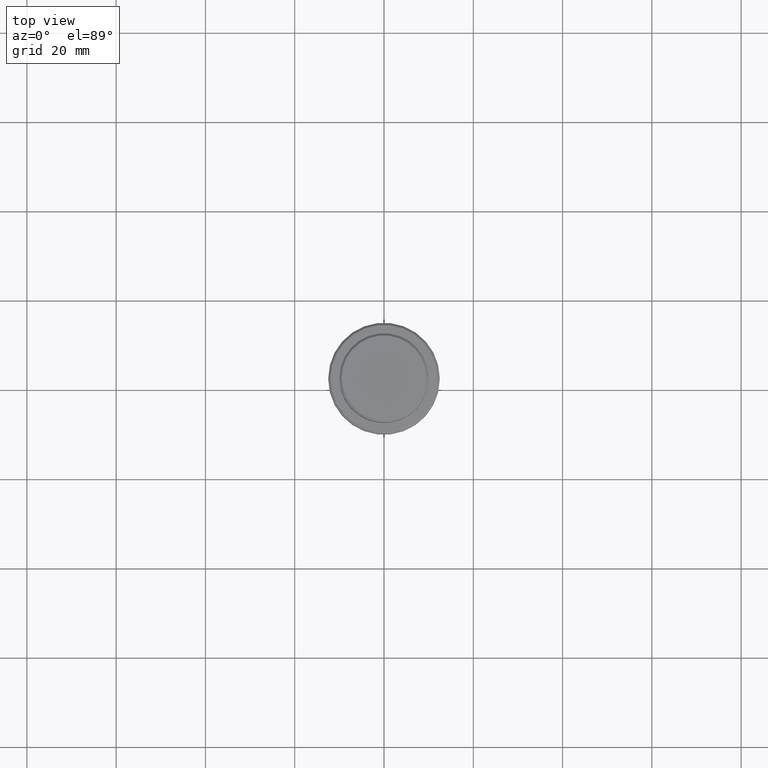
[diagram: clean part render]
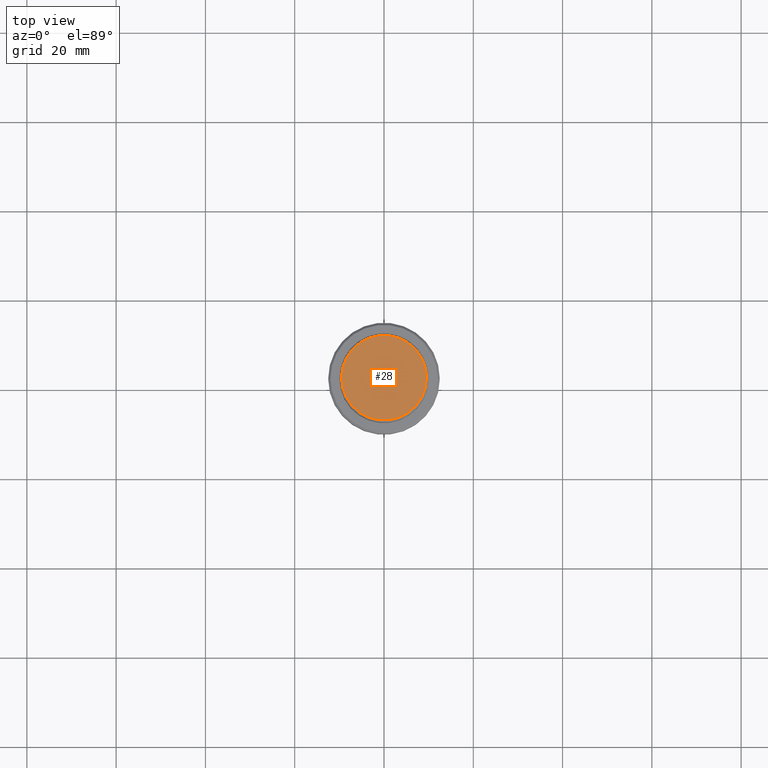
[diagram: same view with one face highlighted and labeled with its STEP entity id]
A machine part, top view. The second image highlights one B-rep face of the part: STEP entity #28.
In plain terms, the highlighted planar face has unit normal (0, -0, 1).
Its self-contained STEP definition (entity closure, byte-faithful):
#28 = ADVANCED_FACE ( 'NONE', ( #1022 ), #307, .T. ) ;
#137 = ORIENTED_EDGE ( 'NONE', *, *, #1136, .T. ) ;
#184 = VERTEX_POINT ( 'NONE', #378 ) ;
#263 = DIRECTION ( 'NONE',  ( -0.000000000000000000, -0.000000000000000000, 1.000000000000000000 ) ) ;
#300 = CARTESIAN_POINT ( 'NONE',  ( 0.000000000000000000, 0.000000000000000000, 0.000000000000000000 ) ) ;
#307 = PLANE ( 'NONE',  #510 ) ;
#310 = AXIS2_PLACEMENT_3D ( 'NONE', #1225, #263, #903 ) ;
#316 = CIRCLE ( 'NONE', #310, 9.500000000000023093 ) ;
#378 = CARTESIAN_POINT ( 'NONE',  ( 9.500000000000023093, 1.194030629168670653E-15, 0.000000000000000000 ) ) ;
#510 = AXIS2_PLACEMENT_3D ( 'NONE', #300, #731, #594 ) ;
#568 = EDGE_LOOP ( 'NONE', ( #137, #1255 ) ) ;
#594 = DIRECTION ( 'NONE',  ( 1.000000000000000000, 0.000000000000000000, 0.000000000000000000 ) ) ;
#612 = EDGE_CURVE ( 'NONE', #184, #645, #667, .T. ) ;
#645 = VERTEX_POINT ( 'NONE', #923 ) ;
#667 = CIRCLE ( 'NONE', #1266, 9.500000000000023093 ) ;
#731 = DIRECTION ( 'NONE',  ( 0.000000000000000000, -0.000000000000000000, 1.000000000000000000 ) ) ;
#903 = DIRECTION ( 'NONE',  ( 1.000000000000000000, 0.000000000000000000, 0.000000000000000000 ) ) ;
#923 = CARTESIAN_POINT ( 'NONE',  ( -9.500000000000023093, 0.000000000000000000, 0.000000000000000000 ) ) ;
#934 = CARTESIAN_POINT ( 'NONE',  ( 0.000000000000000000, 0.000000000000000000, 0.000000000000000000 ) ) ;
#1022 = FACE_OUTER_BOUND ( 'NONE', #568, .T. ) ;
#1136 = EDGE_CURVE ( 'NONE', #645, #184, #316, .T. ) ;
#1225 = CARTESIAN_POINT ( 'NONE',  ( 0.000000000000000000, 0.000000000000000000, 0.000000000000000000 ) ) ;
#1255 = ORIENTED_EDGE ( 'NONE', *, *, #612, .T. ) ;
#1266 = AXIS2_PLACEMENT_3D ( 'NONE', #934, #1388, #1376 ) ;
#1376 = DIRECTION ( 'NONE',  ( 1.000000000000000000, 0.000000000000000000, 0.000000000000000000 ) ) ;
#1388 = DIRECTION ( 'NONE',  ( -0.000000000000000000, -0.000000000000000000, 1.000000000000000000 ) ) ;